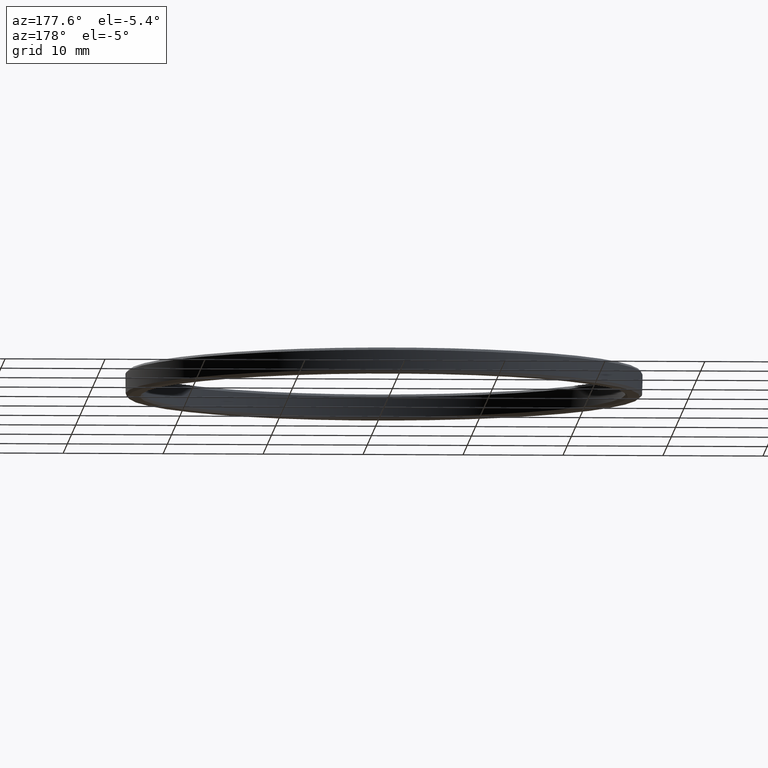
[diagram: clean part render]
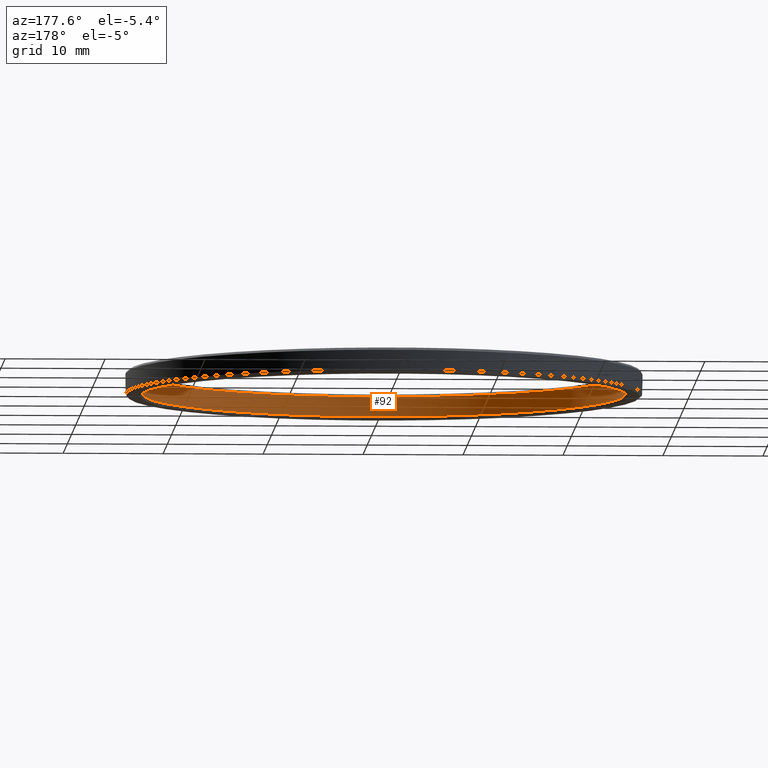
[diagram: same view with one face highlighted and labeled with its STEP entity id]
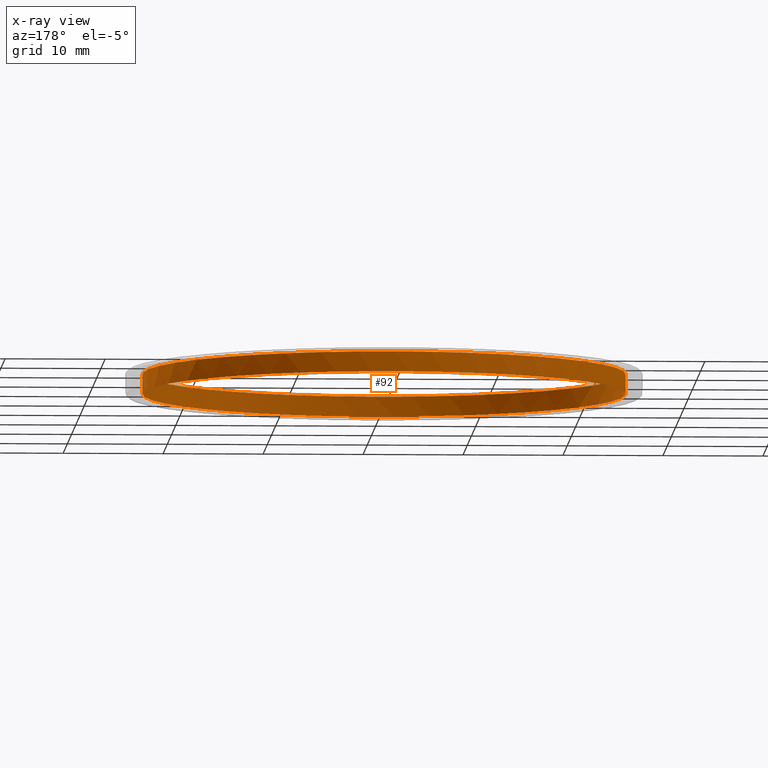
[diagram: x-ray of the same camera — body ghosted, the highlighted face saturated]
A machine part, auxiliary view. The second image highlights one B-rep face of the part: STEP entity #92.
The next image is the same camera in x-ray: the body ghosted, the highlighted face saturated — about 1% of this face is hidden behind the body in this view.
In plain terms, the highlighted cylindrical surface (bore or boss wall) has radius 24.15 mm, axis along (0, -0, 1).
Its self-contained STEP definition (entity closure, byte-faithful):
#3 = EDGE_CURVE ( 'NONE', #324, #279, #374, .T. ) ;
#30 = CIRCLE ( 'NONE', #291, 24.14999999999999858 ) ;
#31 = CARTESIAN_POINT ( 'NONE',  ( -24.14254543332106095, 0.5999999999996008526, -0.9000000000000119016 ) ) ;
#41 = LINE ( 'NONE', #528, #86 ) ;
#47 = AXIS2_PLACEMENT_3D ( 'NONE', #198, #330, #151 ) ;
#54 = VERTEX_POINT ( 'NONE', #564 ) ;
#56 = ORIENTED_EDGE ( 'NONE', *, *, #578, .F. ) ;
#62 = DIRECTION ( 'NONE',  ( 0.000000000000000000, -1.000000000000000000, 0.000000000000000000 ) ) ;
#69 = ORIENTED_EDGE ( 'NONE', *, *, #346, .T. ) ;
#86 = VECTOR ( 'NONE', #412, 1000.000000000000000 ) ;
#88 = ORIENTED_EDGE ( 'NONE', *, *, #397, .F. ) ;
#92 = ADVANCED_FACE ( 'NONE', ( #335, #551 ), #243, .F. ) ;
#93 = ORIENTED_EDGE ( 'NONE', *, *, #252, .T. ) ;
#97 = EDGE_CURVE ( 'NONE', #552, #454, #100, .T. ) ;
#100 = LINE ( 'NONE', #104, #554 ) ;
#104 = CARTESIAN_POINT ( 'NONE',  ( 24.14254543332106095, 0.5999999999996008526, -0.9000000000000119016 ) ) ;
#106 = VECTOR ( 'NONE', #395, 1000.000000000000000 ) ;
#107 = CARTESIAN_POINT ( 'NONE',  ( 24.14254543332135228, -0.6000000000000449418, -0.9000000000000119016 ) ) ;
#119 = DIRECTION ( 'NONE',  ( -3.081487911019577365E-32, 3.014754438446559643E-30, -1.000000000000000000 ) ) ;
#125 = DIRECTION ( 'NONE',  ( 0.000000000000000000, -1.000000000000000000, 0.000000000000000000 ) ) ;
#126 = CARTESIAN_POINT ( 'NONE',  ( 24.14254543332124214, 0.5999999999996008526, -0.2500000000001449396 ) ) ;
#132 = ORIENTED_EDGE ( 'NONE', *, *, #3, .F. ) ;
#143 = ORIENTED_EDGE ( 'NONE', *, *, #354, .T. ) ;
#151 = DIRECTION ( 'NONE',  ( 0.000000000000000000, -1.000000000000000000, 0.000000000000000000 ) ) ;
#158 = DIRECTION ( 'NONE',  ( -3.081487911019577365E-32, 3.014754438446559643E-30, -1.000000000000000000 ) ) ;
#160 = VECTOR ( 'NONE', #213, 1000.000000000000000 ) ;
#188 = CIRCLE ( 'NONE', #308, 24.14999999999999503 ) ;
#198 = CARTESIAN_POINT ( 'NONE',  ( 4.930380657631294225E-32, 2.775557561562890720E-14, -0.9000000000000119016 ) ) ;
#203 = CARTESIAN_POINT ( 'NONE',  ( 24.14254543332135938, 0.5999999999996008526, -0.9000000000000119016 ) ) ;
#205 = VERTEX_POINT ( 'NONE', #107 ) ;
#213 = DIRECTION ( 'NONE',  ( -0.000000000000000000, 3.014754438446559643E-30, -1.000000000000000000 ) ) ;
#214 = CARTESIAN_POINT ( 'NONE',  ( -24.14254543332135228, -0.6000000000000449418, -0.9000000000000119016 ) ) ;
#217 = DIRECTION ( 'NONE',  ( -1.000000000000000000, 0.000000000000000000, 3.591559991670408781E-17 ) ) ;
#233 = CIRCLE ( 'NONE', #258, 24.14999999999999858 ) ;
#243 = CYLINDRICAL_SURFACE ( 'NONE', #352, 24.14999999999999858 ) ;
#249 = VERTEX_POINT ( 'NONE', #300 ) ;
#252 = EDGE_CURVE ( 'NONE', #298, #279, #301, .T. ) ;
#258 = AXIS2_PLACEMENT_3D ( 'NONE', #447, #312, #455 ) ;
#266 = CARTESIAN_POINT ( 'NONE',  ( -24.14254543332135938, 0.5999999999996008526, -0.2500000000003254064 ) ) ;
#268 = ORIENTED_EDGE ( 'NONE', *, *, #328, .F. ) ;
#279 = VERTEX_POINT ( 'NONE', #310 ) ;
#291 = AXIS2_PLACEMENT_3D ( 'NONE', #306, #351, #125 ) ;
#294 = DIRECTION ( 'NONE',  ( 3.081487911019577365E-32, -3.014754438446559643E-30, 1.000000000000000000 ) ) ;
#298 = VERTEX_POINT ( 'NONE', #266 ) ;
#300 = CARTESIAN_POINT ( 'NONE',  ( -24.14999999999999503, 2.775557561562891351E-14, -2.250000000000004441 ) ) ;
#301 = LINE ( 'NONE', #31, #160 ) ;
#306 = CARTESIAN_POINT ( 'NONE',  ( 4.930380657631294225E-32, 2.775557561562890720E-14, -0.9000000000000119016 ) ) ;
#308 = AXIS2_PLACEMENT_3D ( 'NONE', #491, #119, #217 ) ;
#310 = CARTESIAN_POINT ( 'NONE',  ( -24.14254543332135938, 0.5999999999996008526, -0.9000000000000257794 ) ) ;
#312 = DIRECTION ( 'NONE',  ( -3.081487911019577365E-32, 3.014754438446559643E-30, -1.000000000000000000 ) ) ;
#324 = VERTEX_POINT ( 'NONE', #214 ) ;
#328 = EDGE_CURVE ( 'NONE', #552, #205, #30, .T. ) ;
#330 = DIRECTION ( 'NONE',  ( -3.081487911019577365E-32, 3.014754438446559643E-30, -1.000000000000000000 ) ) ;
#335 = FACE_OUTER_BOUND ( 'NONE', #519, .T. ) ;
#346 = EDGE_CURVE ( 'NONE', #324, #502, #532, .T. ) ;
#347 = CARTESIAN_POINT ( 'NONE',  ( -24.14254543332106095, -0.6000000000000449418, -0.9000000000000396572 ) ) ;
#351 = DIRECTION ( 'NONE',  ( -3.081487911019577365E-32, 3.014754438446559643E-30, -1.000000000000000000 ) ) ;
#352 = AXIS2_PLACEMENT_3D ( 'NONE', #512, #294, #62 ) ;
#354 = EDGE_CURVE ( 'NONE', #249, #249, #188, .T. ) ;
#365 = ORIENTED_EDGE ( 'NONE', *, *, #487, .T. ) ;
#374 = CIRCLE ( 'NONE', #47, 24.14999999999999858 ) ;
#382 = DIRECTION ( 'NONE',  ( 0.000000000000000000, -1.000000000000000000, 0.000000000000000000 ) ) ;
#388 = DIRECTION ( 'NONE',  ( 0.000000000000000000, -3.014754438446559643E-30, 1.000000000000000000 ) ) ;
#391 = AXIS2_PLACEMENT_3D ( 'NONE', #570, #158, #382 ) ;
#395 = DIRECTION ( 'NONE',  ( -0.000000000000000000, -3.014754438446559643E-30, 1.000000000000000000 ) ) ;
#397 = EDGE_CURVE ( 'NONE', #298, #454, #233, .T. ) ;
#412 = DIRECTION ( 'NONE',  ( 0.000000000000000000, 3.014754438446559643E-30, -1.000000000000000000 ) ) ;
#447 = CARTESIAN_POINT ( 'NONE',  ( 6.933347799793883762E-32, 2.775557561562890720E-14, -0.2500000000000557332 ) ) ;
#454 = VERTEX_POINT ( 'NONE', #126 ) ;
#455 = DIRECTION ( 'NONE',  ( 0.000000000000000000, -1.000000000000000000, 0.000000000000000000 ) ) ;
#467 = CIRCLE ( 'NONE', #391, 24.14999999999999858 ) ;
#487 = EDGE_CURVE ( 'NONE', #54, #205, #41, .T. ) ;
#491 = CARTESIAN_POINT ( 'NONE',  ( 7.703719777548864042E-33, 2.775557561562891351E-14, -2.250000000000005329 ) ) ;
#500 = EDGE_LOOP ( 'NONE', ( #143 ) ) ;
#502 = VERTEX_POINT ( 'NONE', #592 ) ;
#507 = ORIENTED_EDGE ( 'NONE', *, *, #97, .T. ) ;
#512 = CARTESIAN_POINT ( 'NONE',  ( 0.000000000000000000, 2.775557561562891351E-14, -2.500000000000002220 ) ) ;
#519 = EDGE_LOOP ( 'NONE', ( #268, #507, #88, #93, #132, #69, #56, #365 ) ) ;
#528 = CARTESIAN_POINT ( 'NONE',  ( 24.14254543332106095, -0.6000000000000449418, -0.9000000000000396572 ) ) ;
#532 = LINE ( 'NONE', #347, #106 ) ;
#551 = FACE_OUTER_BOUND ( 'NONE', #500, .T. ) ;
#552 = VERTEX_POINT ( 'NONE', #203 ) ;
#554 = VECTOR ( 'NONE', #388, 1000.000000000000000 ) ;
#564 = CARTESIAN_POINT ( 'NONE',  ( 24.14254543332135228, -0.6000000000000449418, -0.2500000000002927103 ) ) ;
#570 = CARTESIAN_POINT ( 'NONE',  ( 6.933347799794055640E-32, 2.775557561562890720E-14, -0.2500000000000002220 ) ) ;
#578 = EDGE_CURVE ( 'NONE', #54, #502, #467, .T. ) ;
#592 = CARTESIAN_POINT ( 'NONE',  ( -24.14254543332124214, -0.6000000000000449418, -0.2500000000001097455 ) ) ;